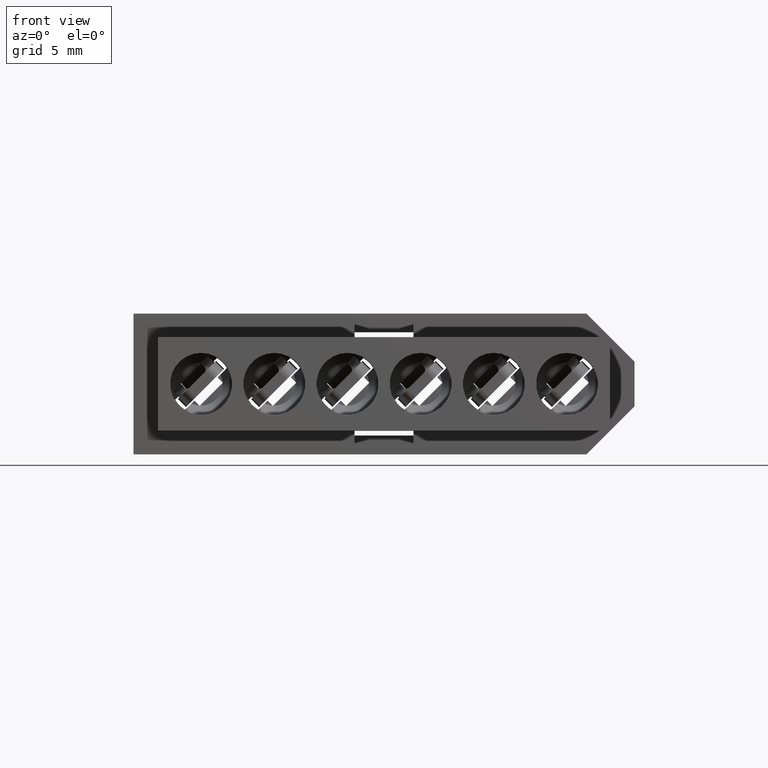
[diagram: clean part render]
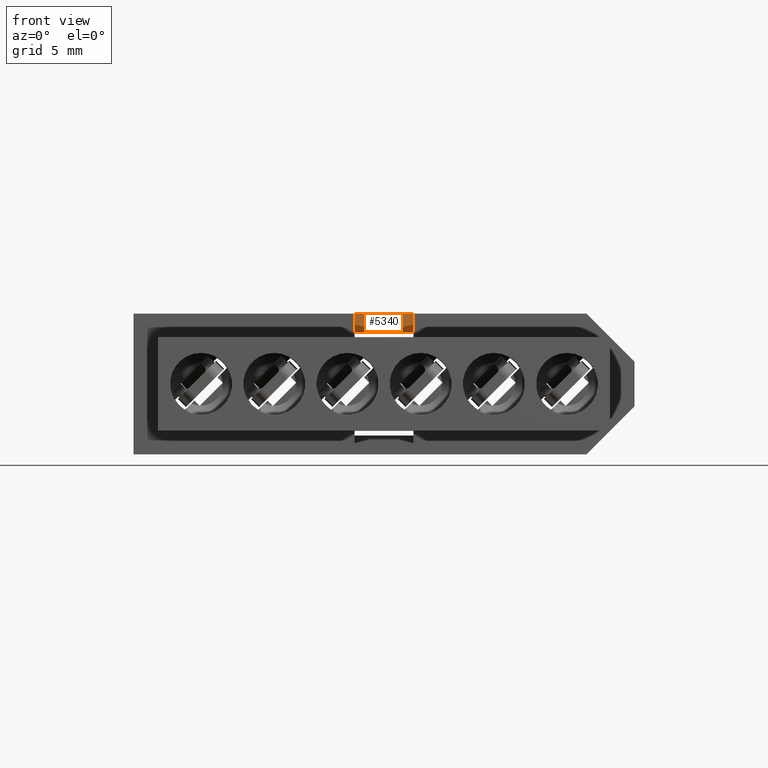
[diagram: same view with one face highlighted and labeled with its STEP entity id]
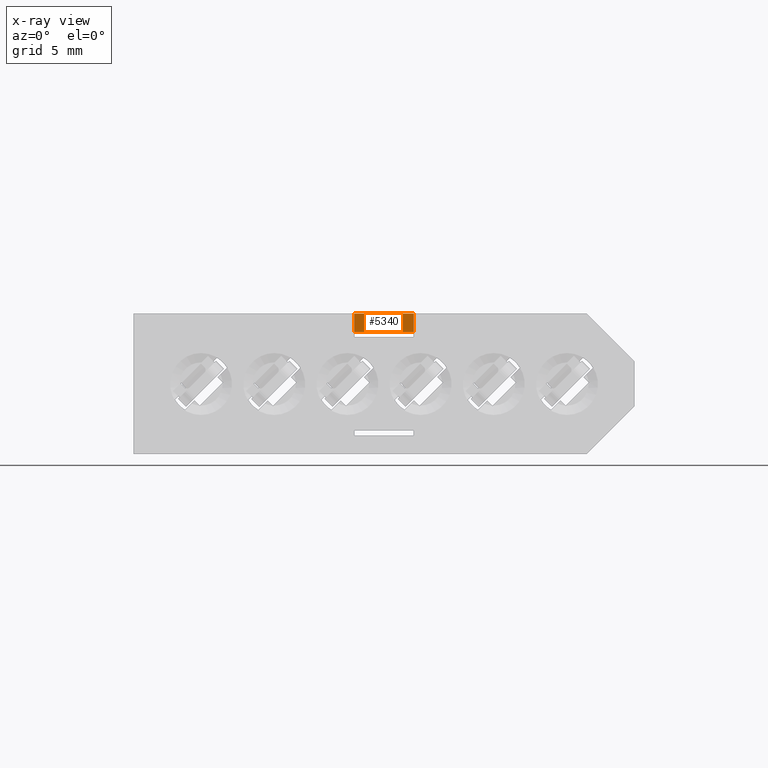
[diagram: x-ray of the same camera — body ghosted, the highlighted face saturated]
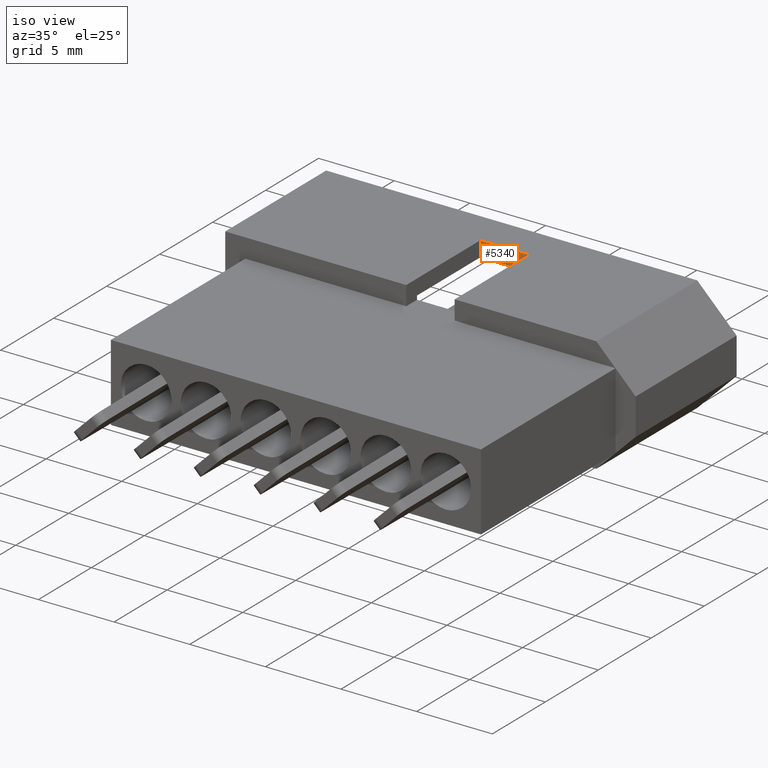
[diagram: same view with one face highlighted and labeled with its STEP entity id]
A machine part, front view. The second image highlights one B-rep face of the part: STEP entity #5340.
The next image is the same camera in x-ray: the body ghosted, the highlighted face saturated — about 0% of this face is hidden behind the body in this view.
A second angle (iso view) of the same face is appended — the face is thin or edge-on in the first view.
In plain terms, the highlighted planar face has unit normal (0, 1, 0).
Its self-contained STEP definition (entity closure, byte-faithful):
#38 = EDGE_CURVE ( 'NONE', #900, #4573, #7443, .T. ) ;
#609 = DIRECTION ( 'NONE',  ( -1.000000000000000000, 0.0000000000000000000, 1.144629047624691800E-016 ) ) ;
#754 = VERTEX_POINT ( 'NONE', #7266 ) ;
#765 = ORIENTED_EDGE ( 'NONE', *, *, #5610, .T. ) ;
#900 = VERTEX_POINT ( 'NONE', #5484 ) ;
#916 = ORIENTED_EDGE ( 'NONE', *, *, #6684, .T. ) ;
#1077 = CARTESIAN_POINT ( 'NONE',  ( 11.50619999999999800, 6.985000000000000300, 3.809999999999999600 ) ) ;
#2192 = CARTESIAN_POINT ( 'NONE',  ( 11.50619999999999800, 6.985000000000000300, 2.539999999999999600 ) ) ;
#2260 = ORIENTED_EDGE ( 'NONE', *, *, #2659, .F. ) ;
#2659 = EDGE_CURVE ( 'NONE', #4402, #900, #5737, .T. ) ;
#2943 = PLANE ( 'NONE',  #8073 ) ;
#3047 = VECTOR ( 'NONE', #8256, 1000.000000000000000 ) ;
#3224 = CARTESIAN_POINT ( 'NONE',  ( 8.305799999999996100, 6.985000000000000300, 2.539999999999999600 ) ) ;
#4189 = LINE ( 'NONE', #1077, #3047 ) ;
#4255 = CARTESIAN_POINT ( 'NONE',  ( 20.15789082475472000, 6.985000000000000300, 2.793999999999997400 ) ) ;
#4295 = VECTOR ( 'NONE', #609, 1000.000000000000000 ) ;
#4402 = VERTEX_POINT ( 'NONE', #5985 ) ;
#4573 = VERTEX_POINT ( 'NONE', #9083 ) ;
#4575 = VECTOR ( 'NONE', #8628, 1000.000000000000000 ) ;
#5147 = DIRECTION ( 'NONE',  ( 0.0000000000000000000, -0.0000000000000000000, 1.000000000000000000 ) ) ;
#5210 = CARTESIAN_POINT ( 'NONE',  ( 11.50619999999999800, 6.985000000000000300, 2.539999999999999600 ) ) ;
#5340 = ADVANCED_FACE ( 'NONE', ( #5745 ), #2943, .F. ) ;
#5484 = CARTESIAN_POINT ( 'NONE',  ( 8.305799999999996100, 6.985000000000000300, 2.793999999999998700 ) ) ;
#5610 = EDGE_CURVE ( 'NONE', #754, #4573, #4189, .T. ) ;
#5737 = LINE ( 'NONE', #4255, #4295 ) ;
#5745 = FACE_OUTER_BOUND ( 'NONE', #6468, .T. ) ;
#5985 = CARTESIAN_POINT ( 'NONE',  ( 11.50619999999999800, 6.985000000000000300, 2.793999999999998700 ) ) ;
#6034 = ORIENTED_EDGE ( 'NONE', *, *, #38, .F. ) ;
#6344 = LINE ( 'NONE', #2192, #4575 ) ;
#6468 = EDGE_LOOP ( 'NONE', ( #916, #765, #6034, #2260 ) ) ;
#6684 = EDGE_CURVE ( 'NONE', #4402, #754, #6344, .T. ) ;
#7266 = CARTESIAN_POINT ( 'NONE',  ( 11.50619999999999800, 6.985000000000000300, 3.809999999999999600 ) ) ;
#7443 = LINE ( 'NONE', #3224, #9227 ) ;
#7976 = DIRECTION ( 'NONE',  ( 0.0000000000000000000, 1.000000000000000000, 0.0000000000000000000 ) ) ;
#8073 = AXIS2_PLACEMENT_3D ( 'NONE', #5210, #7976, #5147 ) ;
#8256 = DIRECTION ( 'NONE',  ( -1.000000000000000000, 0.0000000000000000000, 0.0000000000000000000 ) ) ;
#8628 = DIRECTION ( 'NONE',  ( -0.0000000000000000000, -0.0000000000000000000, 1.000000000000000000 ) ) ;
#8767 = DIRECTION ( 'NONE',  ( -0.0000000000000000000, -0.0000000000000000000, 1.000000000000000000 ) ) ;
#9083 = CARTESIAN_POINT ( 'NONE',  ( 8.305799999999996100, 6.985000000000000300, 3.809999999999999600 ) ) ;
#9227 = VECTOR ( 'NONE', #8767, 1000.000000000000000 ) ;